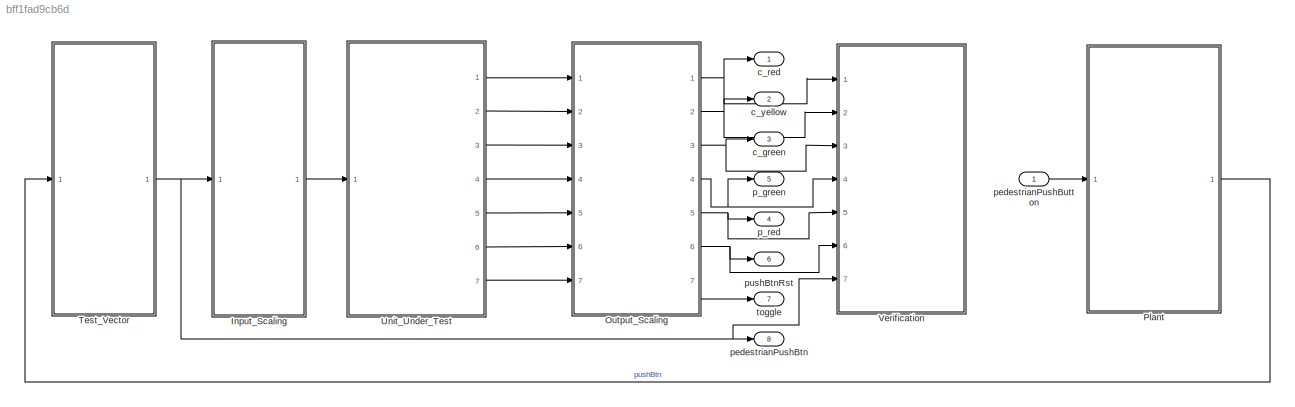
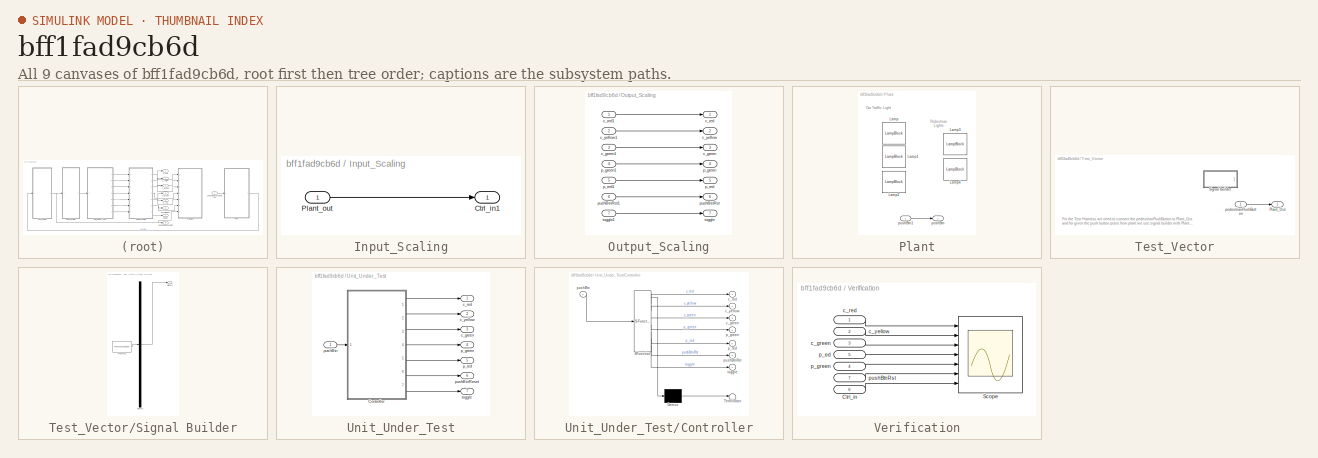
[diagram: thumbnail index - all 9 canvases of the model, root first then tree order]
MODEL slx_bff1fad9cb6d
KIND model
CONFIG AbsTol = auto
CONFIG EnableMultiTasking = off
CONFIG FixedStep = 0.2
CONFIG MaxStep = auto
CONFIG MinStep = auto
CONFIG RelTol = 1e-3
CONFIG SampleTimeConstraint = Unconstrained
CONFIG Solver = FixedStepAuto
CONFIG SolverName = FixedStepAuto
CONFIG StartTime = 0.0
CONFIG StopTime = 500
BLOCK [SubSystem] Input_Scaling
  Ports = [1, 1]
  RequestExecContextInheritance = off
BLOCK [Outport] Input_Scaling/Ctrl_in1
BLOCK [Inport] Input_Scaling/Plant_out
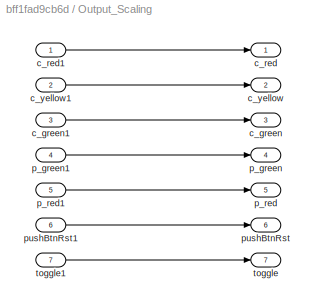
BLOCK [SubSystem] Output_Scaling
  Ports = [7, 7]
  RequestExecContextInheritance = off
BLOCK [Outport] Output_Scaling/c_green
  Port = 3
BLOCK [Inport] Output_Scaling/c_green1
  Port = 3
BLOCK [Outport] Output_Scaling/c_red
BLOCK [Inport] Output_Scaling/c_red1
BLOCK [Outport] Output_Scaling/c_yellow
  Port = 2
BLOCK [Inport] Output_Scaling/c_yellow1
  Port = 2
BLOCK [Outport] Output_Scaling/p_green
  Port = 4
BLOCK [Inport] Output_Scaling/p_green1
  Port = 4
BLOCK [Outport] Output_Scaling/p_red
  Port = 5
BLOCK [Inport] Output_Scaling/p_red1
  Port = 5
BLOCK [Outport] Output_Scaling/pushBtnRst
  Port = 6
BLOCK [Inport] Output_Scaling/pushBtnRst1
  Port = 6
BLOCK [Outport] Output_Scaling/toggle
  Port = 7
BLOCK [Inport] Output_Scaling/toggle1
  Port = 7
BLOCK [SubSystem] Plant
  Ports = [1, 1]
  RequestExecContextInheritance = off
BLOCK [LampBlock] Plant/Lamp
BLOCK [LampBlock] Plant/Lamp1
BLOCK [LampBlock] Plant/Lamp2
BLOCK [LampBlock] Plant/Lamp3
BLOCK [LampBlock] Plant/Lamp4
BLOCK [Outport] Plant/pushBtn
BLOCK [Inport] Plant/pushBtn1
BLOCK [SubSystem] Test_Vector
  Ports = [1, 1]
  RequestExecContextInheritance = off
BLOCK [Outport] Test_Vector/Plant_Out
BLOCK [SubSystem] Test_Vector/Signal Builder
  ClipboardFcn = sigbuilder_block('clipboard');
  CloseFcn = sigbuilder_block('close');
  ContinueFcn = sigbuilder_block('continue');
  CopyFcn = sigbuilder_block('copy');
  DeleteFcn = sigbuilder_block('delete');
  LoadFcn = sigbuilder_block('load');
  MaskHideContents = on
  ModelCloseFcn = sigbuilder_block('modelClose');
  NameChangeFcn = sigbuilder_block('namechange');
  OpenFcn = sigbuilder_block('open',[437.6 199.2 550.4 400 ]);
  PauseFcn = sigbuilder_block('pause');
  Ports = [0, 1]
  PreSaveFcn = sigbuilder_block('preSave');
  RequestExecContextInheritance = off
  StartFcn = sigbuilder_block('start');
  StopFcn = sigbuilder_block('stop');
  Tag = STV Subsys
BLOCK [Demux] Test_Vector/Signal Builder/Demux
  DisplayOption = none
  Outputs = 1
  Ports = [1, 1]
  Tag = STV Demux
BLOCK [FromWorkspace] Test_Vector/Signal Builder/FromWs
  Tag = STV FromWs
  VariableName = tuvar
BLOCK [Outport] Test_Vector/Signal Builder/Signal 1
  Tag = STV Outport
BLOCK [Inport] Test_Vector/pedestrianPushButton
BLOCK [SubSystem] Unit_Under_Test
  Ports = [1, 7]
  RequestExecContextInheritance = off
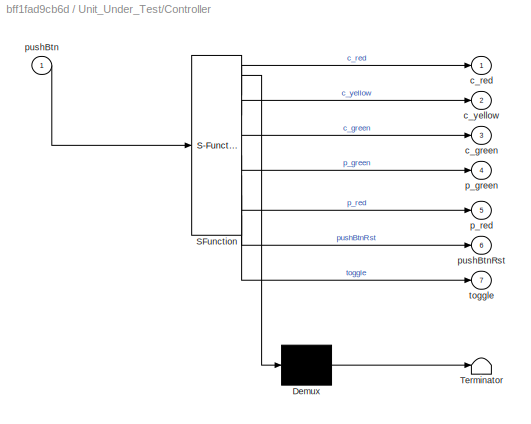
BLOCK [SubSystem] Unit_Under_Test/Controller
  ErrorFcn = Stateflow.Translate.translate
  PermitHierarchicalResolution = ExplicitOnly
  Ports = [1, 7]
  RequestExecContextInheritance = off
  SFBlockType = Chart
  TreatAsAtomicUnit = on
BLOCK [Demux] Unit_Under_Test/Controller/ Demux 
  Outputs = 1
  Ports = [1, 1]
BLOCK [S-Function] Unit_Under_Test/Controller/ SFunction 
  EnableBusSupport = on
  FunctionName = sf_sfun
  PortCounts = [1 8]
  Ports = [1, 8]
  SFcnIsStateOwnerBlock = off
  SFunctionDeploymentMode = off
  Tag = Stateflow S-Function 3
BLOCK [Terminator] Unit_Under_Test/Controller/ Terminator 
BLOCK [Outport] Unit_Under_Test/Controller/c_green
  Port = 3
BLOCK [Outport] Unit_Under_Test/Controller/c_red
BLOCK [Outport] Unit_Under_Test/Controller/c_yellow
  Port = 2
BLOCK [Outport] Unit_Under_Test/Controller/p_green
  Port = 4
BLOCK [Outport] Unit_Under_Test/Controller/p_red
  Port = 5
BLOCK [Inport] Unit_Under_Test/Controller/pushBtn
BLOCK [Outport] Unit_Under_Test/Controller/pushBtnRst
  Port = 6
BLOCK [Outport] Unit_Under_Test/Controller/toggle
  Port = 7
BLOCK [Outport] Unit_Under_Test/c_green
  Port = 3
BLOCK [Outport] Unit_Under_Test/c_red
BLOCK [Outport] Unit_Under_Test/c_yellow
  Port = 2
BLOCK [Outport] Unit_Under_Test/p_green
  Port = 4
BLOCK [Outport] Unit_Under_Test/p_red
  Port = 5
BLOCK [Inport] Unit_Under_Test/pushBtn
BLOCK [Outport] Unit_Under_Test/pushBtnReset
  Port = 6
BLOCK [Outport] Unit_Under_Test/toggle
  Port = 7
BLOCK [SubSystem] Verification
  Ports = [7]
  RequestExecContextInheritance = off
BLOCK [Inport] Verification/Ctrl_in
  IconDisplay = Signal name
  Port = 6
BLOCK [Scope] Verification/Scope
  Floating = off
  NumInputPorts = 7
  Ports = [7]
  ScopeSpecificationString = Simulink.scopes.TimeScopeBlockCfg('CurrentConfiguration', extmgr.ConfigurationSet(extmgr.Configuration('Core','General UI',true,'FigureColor',[1 1 1]),extmgr.Configuration('Core','Source UI',true),extmgr.Configuration('Sources','WiredSimulink',true),extmgr.Configuration('Visuals','Time Domain',true,'SerializedDisplays',{struct('MinYLimReal','-0.125','MaxYLimReal','1.125','YLabelReal','','MinYLimMa...<+8270ch>
BLOCK [Inport] Verification/c_green
  IconDisplay = Signal name
  Port = 3
BLOCK [Inport] Verification/c_red
  IconDisplay = Signal name
BLOCK [Inport] Verification/c_yellow
  IconDisplay = Signal name
  Port = 2
BLOCK [Inport] Verification/p_ed
  IconDisplay = Signal name
  NameLocation = top
  Port = 5
BLOCK [Inport] Verification/p_green
  IconDisplay = Signal name
  NameLocation = top
  Port = 4
BLOCK [Inport] Verification/pushBtnRst
  IconDisplay = Signal name
  Port = 7
BLOCK [Outport] c_green
  Port = 3
BLOCK [Outport] c_red
BLOCK [Outport] c_yellow
  Port = 2
BLOCK [Outport] p_green
  Port = 5
BLOCK [Outport] p_red
  Port = 4
BLOCK [Outport] pedestrianPushBtn
  Port = 8
BLOCK [Inport] pedestrianPushButton
BLOCK [Outport] pushBtnRst
  Port = 6
BLOCK [Outport] toggle
  Port = 7
ANNOTATION Plant: Car Traffic Light
ANNOTATION Plant: Pedestrian Lights
ANNOTATION Test_Vector: For the Test Harness we need to connect the pedestrianPushButton to Plant_Out and for given the push button pulse from plant we use signal builder with Plant_Out.
LINE Input_Scaling/Plant_out:1 -> Input_Scaling/Ctrl_in1:1
LINE Input_Scaling:1 -> Unit_Under_Test:1
LINE Output_Scaling/c_green1:1 -> Output_Scaling/c_green:1
LINE Output_Scaling/c_red1:1 -> Output_Scaling/c_red:1
LINE Output_Scaling/c_yellow1:1 -> Output_Scaling/c_yellow:1
LINE Output_Scaling/p_green1:1 -> Output_Scaling/p_green:1
LINE Output_Scaling/p_red1:1 -> Output_Scaling/p_red:1
LINE Output_Scaling/pushBtnRst1:1 -> Output_Scaling/pushBtnRst:1
LINE Output_Scaling/toggle1:1 -> Output_Scaling/toggle:1
NET Output_Scaling:1 -> Verification:1, c_red:1
NET Output_Scaling:2 -> Verification:2, c_yellow:1
NET Output_Scaling:3 -> Verification:3, c_green:1
NET Output_Scaling:4 -> Verification:4, p_green:1
NET Output_Scaling:5 -> Verification:5, p_red:1
NET Output_Scaling:6 -> Verification:6, pushBtnRst:1
LINE Output_Scaling:7 -> toggle:1
LINE Plant/pushBtn1:1 -> Plant/pushBtn:1
LINE Plant:1 -> Test_Vector:1
LINE Test_Vector/pedestrianPushButton:1 -> Test_Vector/Plant_Out:1
NET Test_Vector:1 -> Input_Scaling:1, Verification:7, pedestrianPushBtn:1
LINE Unit_Under_Test/Controller:1 -> Unit_Under_Test/c_red:1
LINE Unit_Under_Test/Controller:2 -> Unit_Under_Test/c_yellow:1
LINE Unit_Under_Test/Controller:3 -> Unit_Under_Test/c_green:1
LINE Unit_Under_Test/Controller:4 -> Unit_Under_Test/p_green:1
LINE Unit_Under_Test/Controller:5 -> Unit_Under_Test/p_red:1
LINE Unit_Under_Test/Controller:6 -> Unit_Under_Test/pushBtnReset:1
LINE Unit_Under_Test/Controller:7 -> Unit_Under_Test/toggle:1
LINE Unit_Under_Test/pushBtn:1 -> Unit_Under_Test/Controller:1
LINE Unit_Under_Test:1 -> Output_Scaling:1
LINE Unit_Under_Test:2 -> Output_Scaling:2
LINE Unit_Under_Test:3 -> Output_Scaling:3
LINE Unit_Under_Test:4 -> Output_Scaling:4
LINE Unit_Under_Test:5 -> Output_Scaling:5
LINE Unit_Under_Test:6 -> Output_Scaling:6
LINE Unit_Under_Test:7 -> Output_Scaling:7
LINE Verification/Ctrl_in:1 -> Verification/Scope:7
LINE Verification/c_green:1 -> Verification/Scope:3
LINE Verification/c_red:1 -> Verification/Scope:1
LINE Verification/c_yellow:1 -> Verification/Scope:2
LINE Verification/p_ed:1 -> Verification/Scope:4
LINE Verification/p_green:1 -> Verification/Scope:5
LINE Verification/pushBtnRst:1 -> Verification/Scope:6
LINE pedestrianPushButton:1 -> Plant:1
note: NET lines group one-source signal fan-out (src -> all destinations, sorted); 1:1 wires keep LINE
CHART Unit_Under_Test/Controller states=10 transitions=16
  STATE_LABEL 'TraffcLight'
  STATE_LABEL 'P_Green\nentry:\npushBtnRst=1;\np_green=1;\nduring:\np_green=1;\ntoggle=0;\nexit:\np_green =0;\np_red=1;\ntoggle=0;\n'
  STATE_LABEL 'Car_RedYellow\nentry:\np_red=1;\nc_red = 1;\nc_yellow = 1;\nduring:\nc_red = 1;\nc_yellow = 1;\np_green=0;\nexit:\nc_red = 0;\nc_yellow = 0;\np_green=0;\np_red=1;'
  STATE_LABEL 'Car_Red\nentry:\nc_red = 1;\nduring:\nc_red = 1;\non after (10,sec):\ntoggle=0;\nexit:\nc_red = 1;\n'
  STATE_LABEL 'P_Red\nentry:\npushBtnRst=0;\np_red=1;\nduring:\np_red=1;\nexit:\np_red=0;\n'
  STATE_LABEL 'Car_Green\nentry:\nc_green = 1;\nduring:\nc_green = 1;\np_green=0;\np_red=1;\nexit:\nc_green = 0;\np_green=0;\np_red=1;'
  STATE_LABEL 'Car_Yellow\nentry:\nc_yellow = 1;\nduring:\nc_yellow = 1;\np_green=0;\np_red=1;\nexit:\nc_yellow = 0;\np_green=0;\np_red=1;'
  STATE_LABEL 'after(5,sec)[toggle==1 && c_red==1]'
  STATE_LABEL 'after(20,sec)/{toggle==0}'
  STATE_LABEL 'after(30,sec)/{p_red==1}'
  STATE_LABEL 'after(5,sec)'
  STATE_LABEL 'after(30,sec)/{p_red==1 }'
  STATE_LABEL 'after(5,sec)'
  STATE_LABEL 'P_Green\nentry:\npushBtnRst=1;\np_green=1;\nduring:\np_green=1;\ntoggle=0;\nexit:\np_green =0;\np_red=1;\ntoggle=0;\n'
  STATE_LABEL 'Car_RedYellow\nentry:\np_red=1;\nc_red = 1;\nc_yellow = 1;\nduring:\nc_red = 1;\nc_yellow = 1;\np_green=0;\nexit:\nc_red = 0;\nc_yellow = 0;\np_green=0;\np_red=1;'
  STATE_LABEL 'Car_Red\nentry:\nc_red = 1;\nduring:\nc_red = 1;\non after (10,sec):\ntoggle=0;\nexit:\nc_red = 1;\n'
  STATE_LABEL 'P_Red\nentry:\npushBtnRst=0;\np_red=1;\nduring:\np_red=1;\nexit:\np_red=0;\n'
  STATE_LABEL 'P_Red\nentry:\npushBtnRst=0;\np_red=1;\nduring:\np_red=1;\nexit:\np_red=0;\n'
  STATE_LABEL 'Car_Green\nentry:\nc_green = 1;\nduring:\nc_green = 1;\np_green=0;\np_red=1;\nexit:\nc_green = 0;\np_green=0;\np_red=1;'
  STATE_LABEL 'Car_Yellow\nentry:\nc_yellow = 1;\nduring:\nc_yellow = 1;\np_green=0;\np_red=1;\nexit:\nc_yellow = 0;\np_green=0;\np_red=1;'
  STATE_LABEL 'Toggle'
  STATE_LABEL 'toggleOn1\nentry:\ntoggle=1;\nduring:\ntoggle=1;\nexit:\ntoggle=0\n'
  STATE_LABEL 'toggleOff\nentry:\ntoggle=0;\nduring:\ntoggle=0;\nexit:\ntoggle=0;'
  STATE_LABEL '[pushBtn==0 && pushBtnRst==1]'
  STATE_LABEL '[pushBtn==1 && pushBtnRst==0]'
  STATE_LABEL 'toggleOn1\nentry:\ntoggle=1;\nduring:\ntoggle=1;\nexit:\ntoggle=0\n'
  STATE_LABEL 'toggleOff\nentry:\ntoggle=0;\nduring:\ntoggle=0;\nexit:\ntoggle=0;'
CHART  states=0 transitions=0
